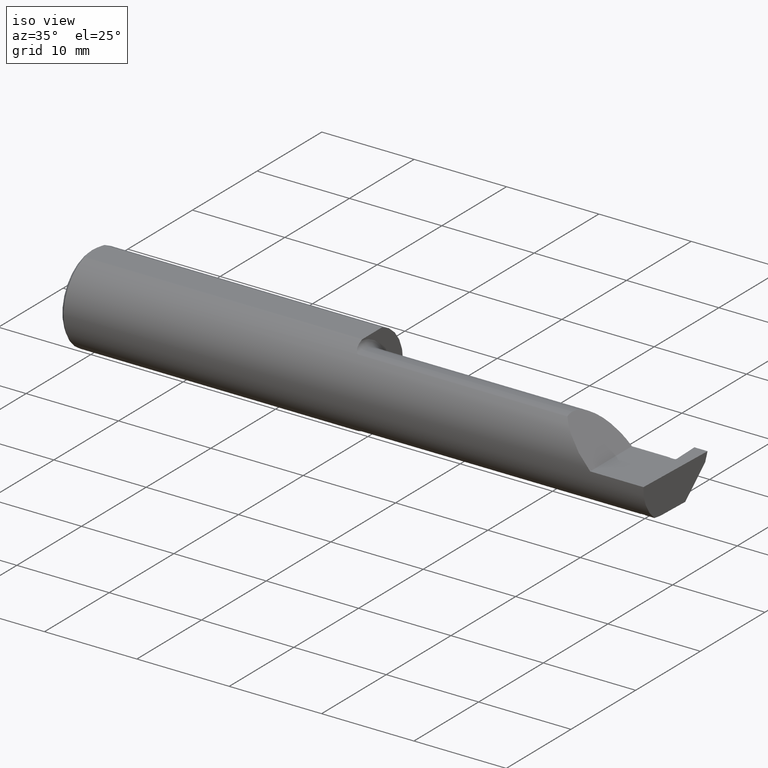
[diagram: clean part render]
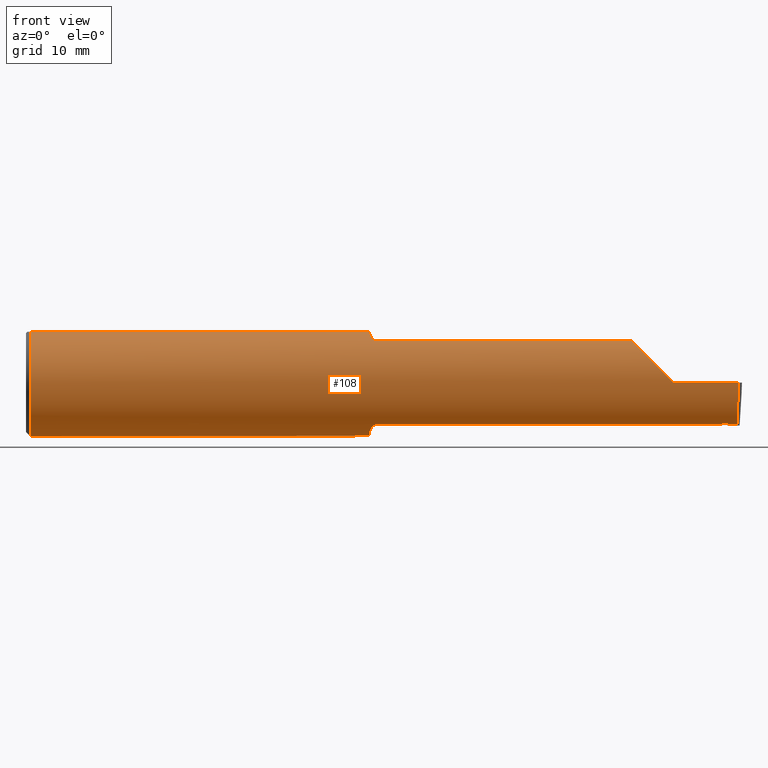
[diagram: tour spotlight — one face highlighted and labeled with its STEP entity id]
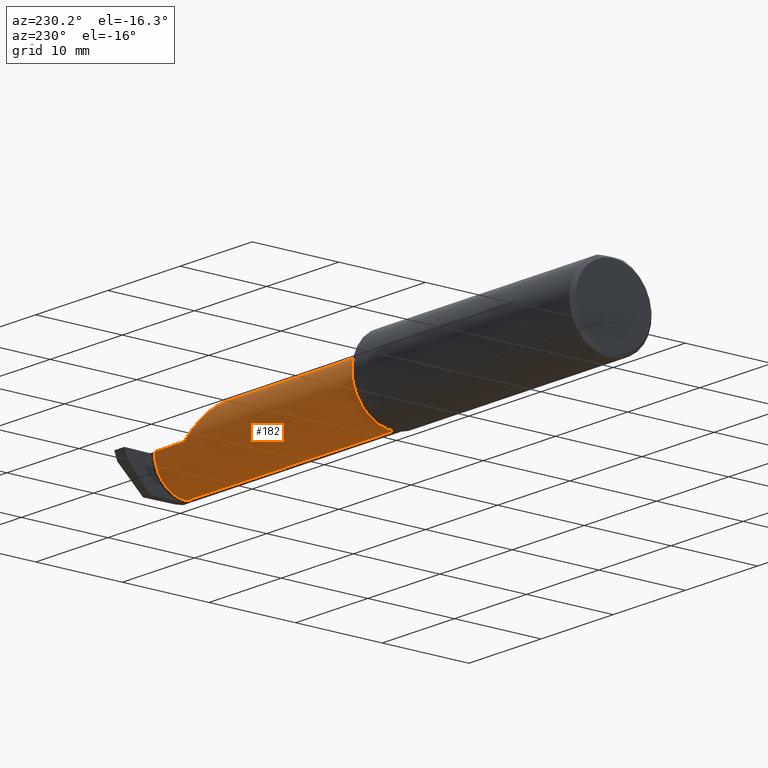
[diagram: tour spotlight — one face highlighted and labeled with its STEP entity id]
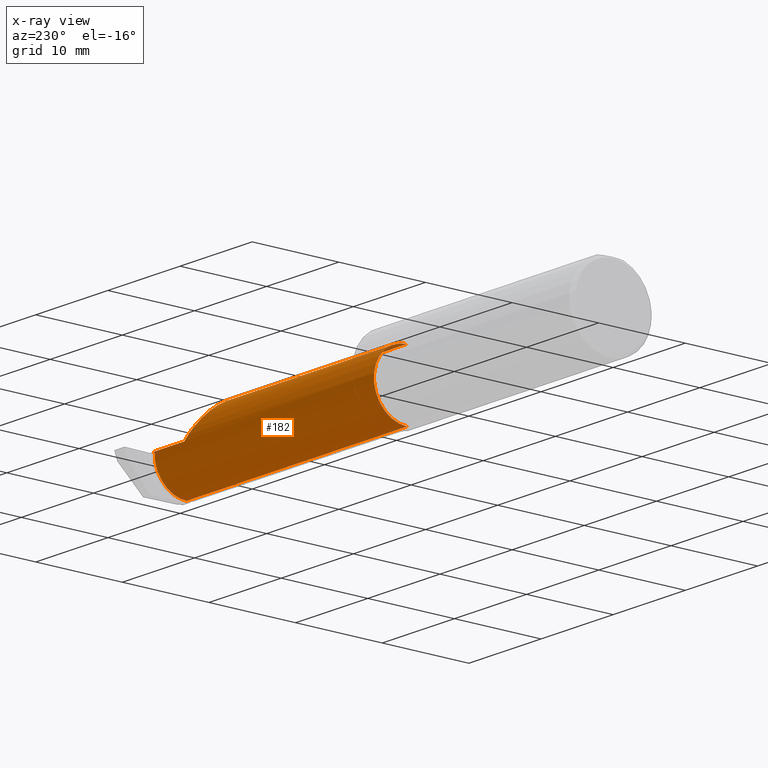
[diagram: x-ray of the same camera — body ghosted, this tour face saturated]
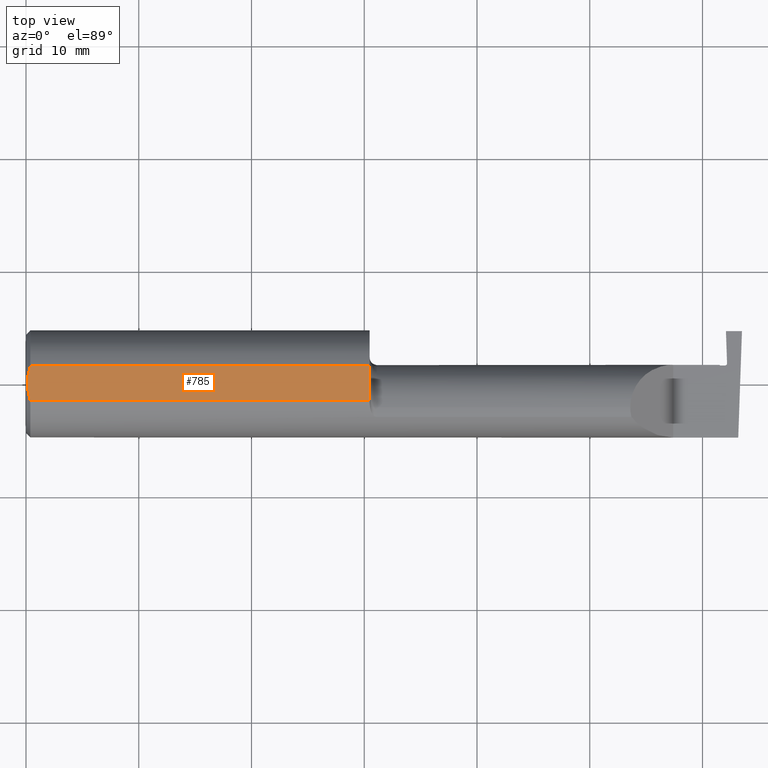
[diagram: tour spotlight — one face highlighted and labeled with its STEP entity id]
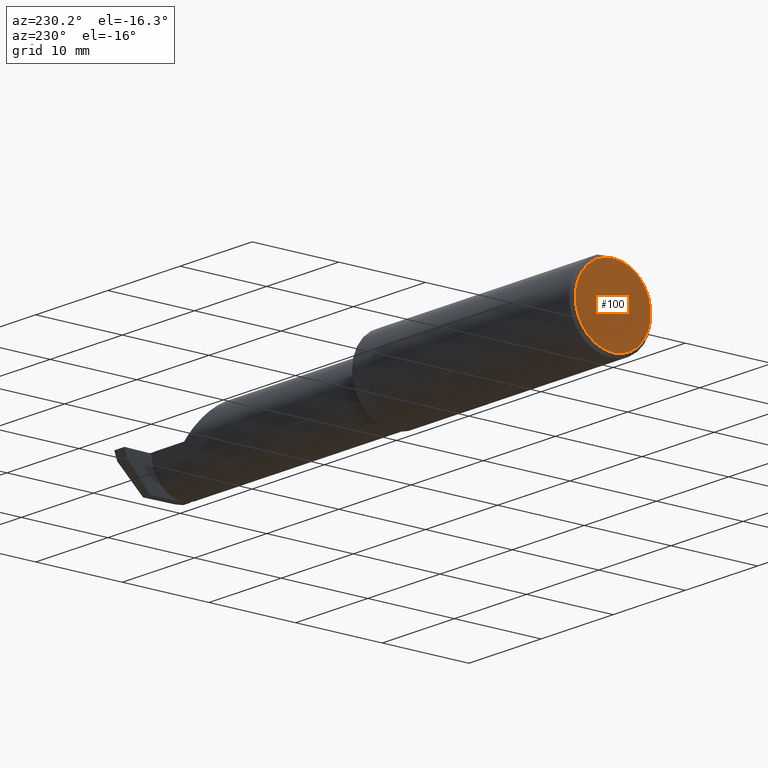
[diagram: tour spotlight — one face highlighted and labeled with its STEP entity id]
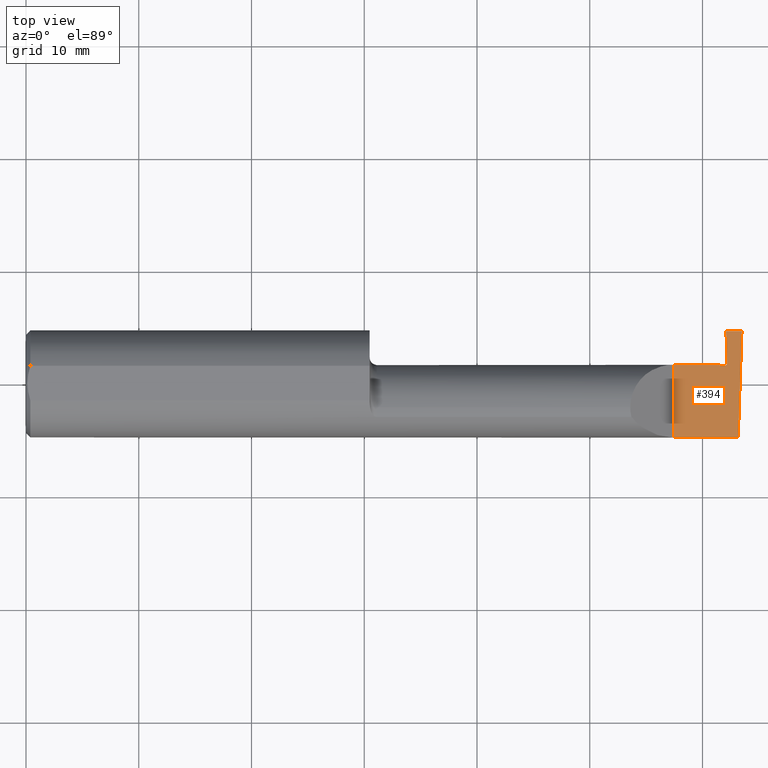
[diagram: tour spotlight — one face highlighted and labeled with its STEP entity id]
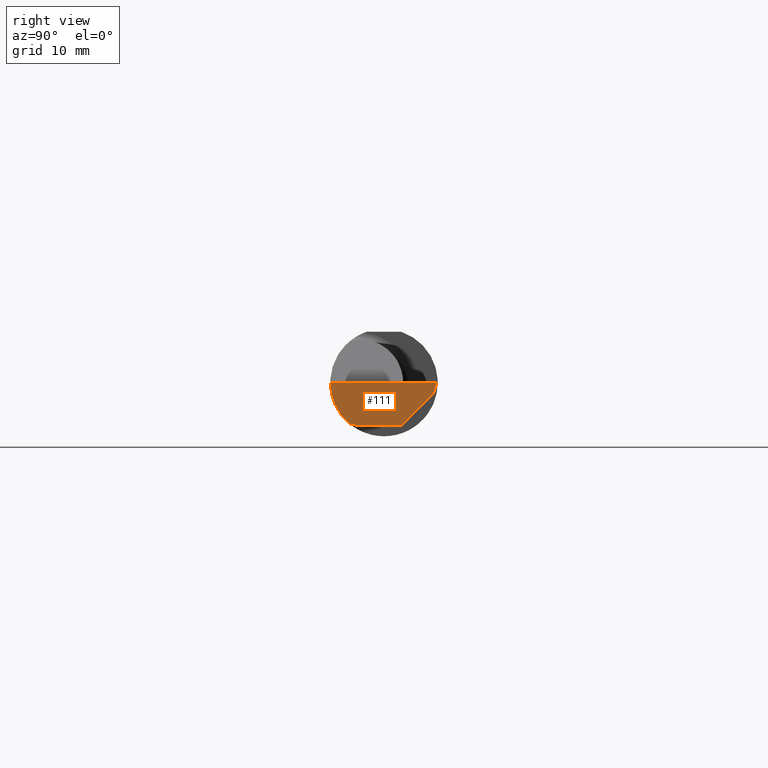
[diagram: tour spotlight — one face highlighted and labeled with its STEP entity id]
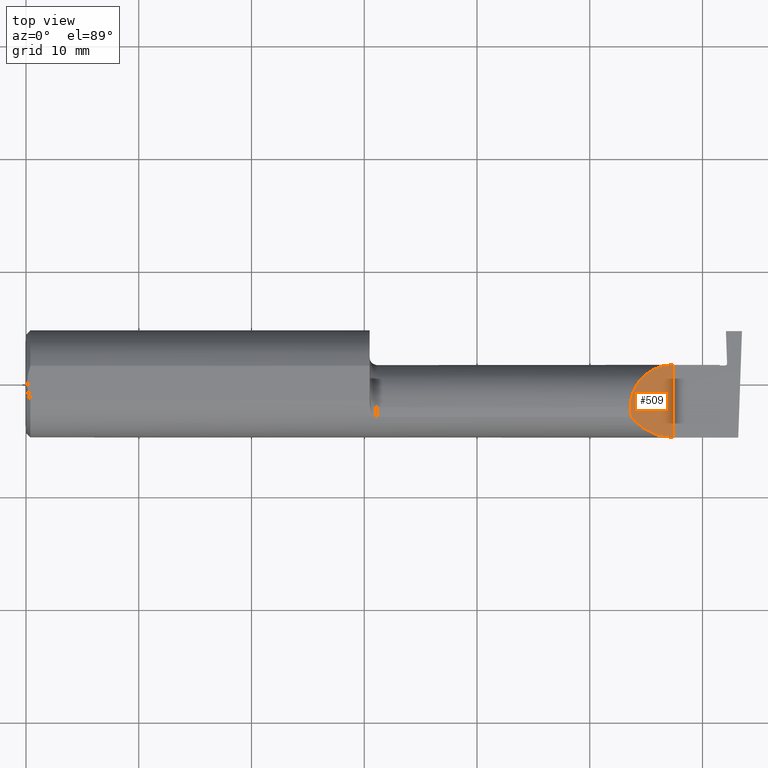
[diagram: tour spotlight — one face highlighted and labeled with its STEP entity id]
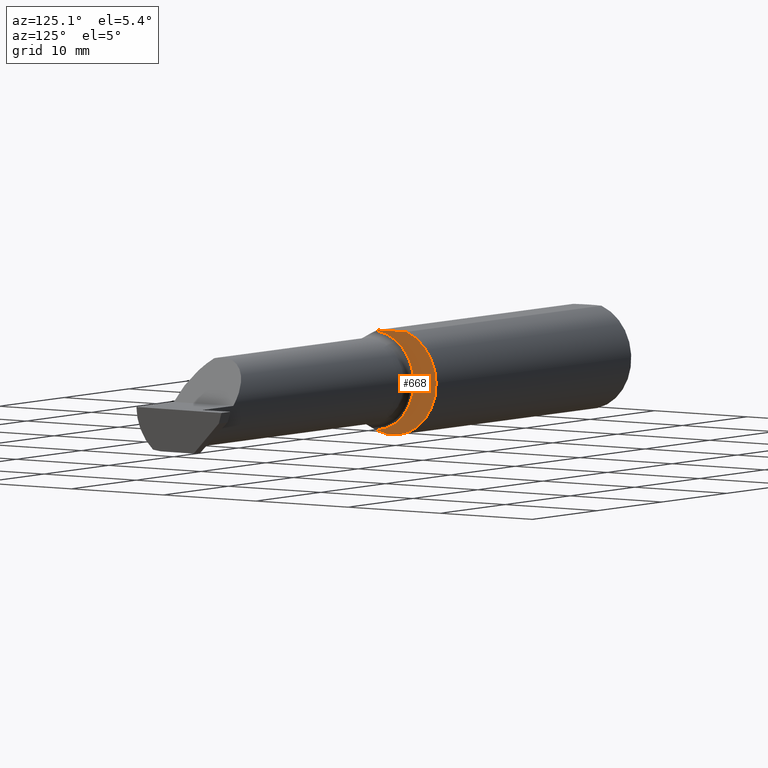
[diagram: tour spotlight — one face highlighted and labeled with its STEP entity id]
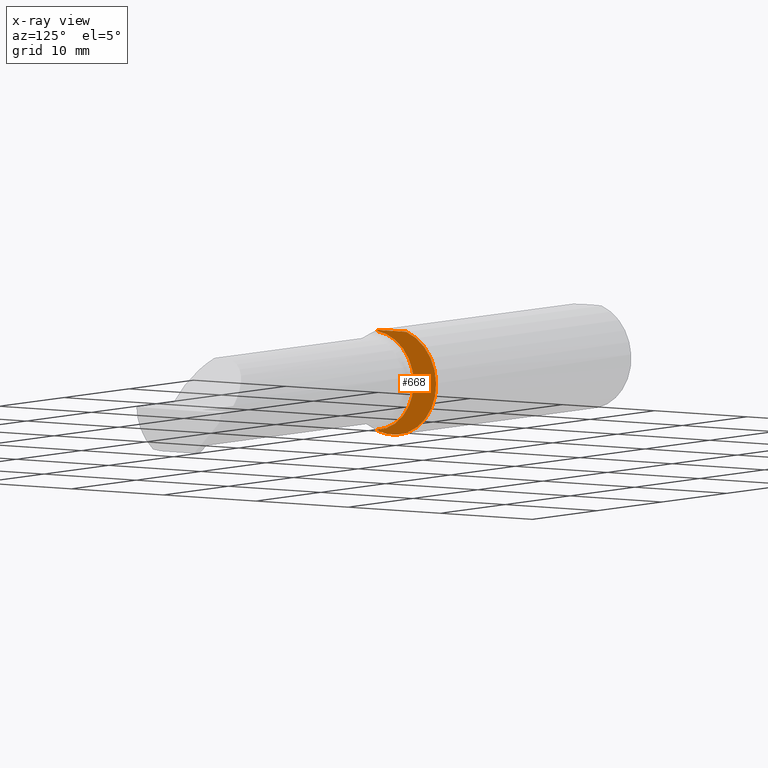
[diagram: x-ray of the same camera — body ghosted, this tour face saturated]
A machine part: a face-by-face anatomy tour. The part has 23 B-rep faces; the first image is the clean iso view, then the 8 largest visible faces are spotlighted one at a time (largest first), each with its STEP entity span.

Face 1 — front view, entity #108. In plain terms, the highlighted cylindrical surface (partial cylindrical patch) has radius 4.7587 mm, axis along (-1, -0, -0).
Definition (entity closure, byte-faithful):
#17 = CARTESIAN_POINT ( 'NONE',  ( 1.225000000000000089, -0.1172600179964007477, 0.1461167706989302817 ) ) ;
#19 = AXIS2_PLACEMENT_3D ( 'NONE', #269, #747, #589 ) ;
#33 = EDGE_CURVE ( 'NONE', #578, #119, #468, .T. ) ;
#34 = CARTESIAN_POINT ( 'NONE',  ( 2.450688798581047045, -0.1181608706206838805, -0.1453938283944277432 ) ) ;
#40 = CARTESIAN_POINT ( 'NONE',  ( 1.199999999999999956, 0.000000000000000000, 0.000000000000000000 ) ) ;
#54 = CIRCLE ( 'NONE', #639, 0.1873499999999999888 ) ;
#61 = CARTESIAN_POINT ( 'NONE',  ( 2.437481533252324972, -0.1204618404460300329, -0.1434886584041366320 ) ) ;
#65 = CARTESIAN_POINT ( 'NONE',  ( 1.209228130464466977, -0.1072797540790369208, -0.1536407449207394804 ) ) ;
#68 = VERTEX_POINT ( 'NONE', #185 ) ;
#69 = CARTESIAN_POINT ( 'NONE',  ( 2.485628535317038867, -0.1172600179964007061, -0.1461167706989303094 ) ) ;
#77 = CARTESIAN_POINT ( 'NONE',  ( 2.441709548055428503, -0.1207156342425953904, -0.1432751135033851486 ) ) ;
#97 = AXIS2_PLACEMENT_3D ( 'NONE', #838, #357, #749 ) ;
#98 = ORIENTED_EDGE ( 'NONE', *, *, #579, .F. ) ;
#103 = CARTESIAN_POINT ( 'NONE',  ( 0.01499999999999999944, -0.06039039658753697637, 0.1773499999999999799 ) ) ;
#105 = EDGE_CURVE ( 'NONE', #113, #927, #911, .T. ) ;
#108 = ADVANCED_FACE ( 'NONE', ( #577 ), #659, .T. ) ;
#109 = CARTESIAN_POINT ( 'NONE',  ( 1.199999999999999956, -0.07359296612170562746, -0.1723769398647691520 ) ) ;
#113 = VERTEX_POINT ( 'NONE', #17 ) ;
#119 = VERTEX_POINT ( 'NONE', #980 ) ;
#122 = CARTESIAN_POINT ( 'NONE',  ( 2.451191799768040802, -0.1172600179964005812, -0.1461167706989303372 ) ) ;
#129 = ORIENTED_EDGE ( 'NONE', *, *, #595, .F. ) ;
#131 = DIRECTION ( 'NONE',  ( -1.000000000000000000, -0.000000000000000000, -0.000000000000000000 ) ) ;
#133 = CARTESIAN_POINT ( 'NONE',  ( 2.445937596161623873, -0.1209687695218929354, -0.1430614528807782615 ) ) ;
#134 = CARTESIAN_POINT ( 'NONE',  ( 1.216924463282974767, -0.1152182125075830038, 0.1477647100440764305 ) ) ;
#143 = CARTESIAN_POINT ( 'NONE',  ( 1.222868998470238333, -0.1172600179964009282, -0.1461167706989301707 ) ) ;
#145 = VERTEX_POINT ( 'NONE', #190 ) ;
#154 = ORIENTED_EDGE ( 'NONE', *, *, #330, .F. ) ;
#169 = ORIENTED_EDGE ( 'NONE', *, *, #214, .F. ) ;
#170 = CARTESIAN_POINT ( 'NONE',  ( 1.225000000000000089, -0.1172600179964006922, -0.1461167706989303094 ) ) ;
#183 = CARTESIAN_POINT ( 'NONE',  ( 1.199999999999999956, -0.06851976604679065053, -0.1743704796142198643 ) ) ;
#185 = CARTESIAN_POINT ( 'NONE',  ( 0.01499999999999756042, 0.06039039658754215278, 0.1773499999999999799 ) ) ;
#190 = CARTESIAN_POINT ( 'NONE',  ( 1.199999999999999956, 0.06039039658754216666, 0.1773499999999999799 ) ) ;
#195 = CARTESIAN_POINT ( 'NONE',  ( 2.427647260851300004, -0.1172600179964005812, -0.1461167706989303372 ) ) ;
#199 = CARTESIAN_POINT ( 'NONE',  ( 2.451191799768040802, -0.1172600179964005812, -0.1461167706989303372 ) ) ;
#214 = EDGE_CURVE ( 'NONE', #661, #230, #651, .T. ) ;
#224 = CARTESIAN_POINT ( 'NONE',  ( 2.433253561410129606, -0.1202072007494162376, -0.1437020493321420622 ) ) ;
#227 = DIRECTION ( 'NONE',  ( 1.000000000000000000, 0.000000000000000000, 0.000000000000000000 ) ) ;
#228 = CARTESIAN_POINT ( 'NONE',  ( 1.202380638915945044, -0.09060738690120608008, -0.1640321561807271122 ) ) ;
#230 = VERTEX_POINT ( 'NONE', #133 ) ;
#231 = B_SPLINE_CURVE_WITH_KNOTS ( 'NONE', 3,
 ( #252, #441, #109, #183 ),
 .UNSPECIFIED., .F., .F.,
 ( 4, 4 ),
 ( 0.001278539404338893291, 0.001694873732696241956 ),
 .UNSPECIFIED. ) ;
#234 = LINE ( 'NONE', #1040, #683 ) ;
#240 = CARTESIAN_POINT ( 'NONE',  ( 1.215551048069661189, -0.1140002044565612965, -0.1486821290834928477 ) ) ;
#242 = VERTEX_POINT ( 'NONE', #526 ) ;
#245 = DIRECTION ( 'NONE',  ( -1.000000000000000000, -0.000000000000000000, -0.000000000000000000 ) ) ;
#252 = CARTESIAN_POINT ( 'NONE',  ( 1.201062863587535334, -0.08334999999999988252, -0.1677879614275112896 ) ) ;
#254 = CARTESIAN_POINT ( 'NONE',  ( 2.113883229301070532, -0.1172600179964006784, 0.1461167706989303650 ) ) ;
#257 = VERTEX_POINT ( 'NONE', #774 ) ;
#269 = CARTESIAN_POINT ( 'NONE',  ( 0.000000000000000000, 0.000000000000000000, 0.000000000000000000 ) ) ;
#276 = LINE ( 'NONE', #1017, #318 ) ;
#278 = CARTESIAN_POINT ( 'NONE',  ( 2.428567406358980829, -0.1190609576996921742, -0.1446577184724211484 ) ) ;
#280 = B_SPLINE_CURVE_WITH_KNOTS ( 'NONE', 3,
 ( #995, #278, #435, #729 ),
 .UNSPECIFIED., .F., .F.,
 ( 4, 4 ),
 ( 0.000000000000000000, 9.500698411833482918E-05 ),
 .UNSPECIFIED. ) ;
#290 = CARTESIAN_POINT ( 'NONE',  ( 1.209249444250374506, -0.1073163636891286687, 0.1536158790136664953 ) ) ;
#293 = CARTESIAN_POINT ( 'NONE',  ( 1.199999999999999956, 0.000000000000000000, 0.000000000000000000 ) ) ;
#298 = CARTESIAN_POINT ( 'NONE',  ( 1.200344683557281300, -0.07855153123406184712, 0.1701716388274757685 ) ) ;
#305 = CARTESIAN_POINT ( 'NONE',  ( 1.199999999999999956, -0.06851976604679065053, -0.1743704796142198643 ) ) ;
#308 = VERTEX_POINT ( 'NONE', #305 ) ;
#310 = CARTESIAN_POINT ( 'NONE',  ( 1.220804171164107110, -0.1167508198888951854, -0.1465276362740036142 ) ) ;
#312 = ORIENTED_EDGE ( 'NONE', *, *, #33, .F. ) ;
#314 = CARTESIAN_POINT ( 'NONE',  ( 2.431139589740714424, -0.1200795990372915262, -0.1438086927498431200 ) ) ;
#318 = VECTOR ( 'NONE', #863, 39.37007874015748143 ) ;
#323 = EDGE_CURVE ( 'NONE', #230, #970, #604, .T. ) ;
#325 = AXIS2_PLACEMENT_3D ( 'NONE', #504, #834, #918 ) ;
#330 = EDGE_CURVE ( 'NONE', #717, #661, #234, .T. ) ;
#342 = VECTOR ( 'NONE', #570, 39.37007874015748143 ) ;
#354 = VECTOR ( 'NONE', #709, 39.37007874015748143 ) ;
#356 = ORIENTED_EDGE ( 'NONE', *, *, #363, .F. ) ;
#357 = DIRECTION ( 'NONE',  ( -1.000000000000000000, -0.000000000000000000, -0.000000000000000000 ) ) ;
#359 = CARTESIAN_POINT ( 'NONE',  ( 2.260000000000000231, -0.1873499999999999888, 2.939152317953647352E-17 ) ) ;
#363 = EDGE_CURVE ( 'NONE', #917, #906, #815, .T. ) ;
#370 = CARTESIAN_POINT ( 'NONE',  ( 2.447211118897188786, -0.1210449020109340551, -0.1429970773740676104 ) ) ;
#373 = ORIENTED_EDGE ( 'NONE', *, *, #854, .T. ) ;
#382 = VERTEX_POINT ( 'NONE', #699 ) ;
#389 = CARTESIAN_POINT ( 'NONE',  ( 2.439595533463821742, -0.1205888784328996016, -0.1433819108919001939 ) ) ;
#398 = CARTESIAN_POINT ( 'NONE',  ( 1.217163414264744059, -0.1151183835841408237, -0.1478135984872519793 ) ) ;
#404 = CARTESIAN_POINT ( 'NONE',  ( 2.429025632386769828, -0.1199517158066736172, -0.1439152819371001535 ) ) ;
#407 = EDGE_CURVE ( 'NONE', #551, #927, #802, .T. ) ;
#428 = ORIENTED_EDGE ( 'NONE', *, *, #474, .F. ) ;
#435 = CARTESIAN_POINT ( 'NONE',  ( 2.428107891671610563, -0.1181636587484605622, -0.1453915908968996529 ) ) ;
#441 = CARTESIAN_POINT ( 'NONE',  ( 1.200346246588684940, -0.07856197451716394331, -0.1701664510438046507 ) ) ;
#443 = CARTESIAN_POINT ( 'NONE',  ( 1.225000000000000089, -0.1172600179964007477, 0.1461167706989302817 ) ) ;
#450 = CIRCLE ( 'NONE', #97, 0.1873499999999999888 ) ;
#451 = CARTESIAN_POINT ( 'NONE',  ( 2.485494735025390867, -0.1873500000000000443, -0.05781030015605120170 ) ) ;
#462 = CARTESIAN_POINT ( 'NONE',  ( 2.445937596161623873, -0.1209687695218929354, -0.1430614528807782615 ) ) ;
#468 = LINE ( 'NONE', #485, #839 ) ;
#474 = EDGE_CURVE ( 'NONE', #487, #917, #276, .T. ) ;
#485 = CARTESIAN_POINT ( 'NONE',  ( 0.000000000000000000, -0.06039039658753697637, 0.1773499999999999799 ) ) ;
#487 = VERTEX_POINT ( 'NONE', #195 ) ;
#498 = ORIENTED_EDGE ( 'NONE', *, *, #696, .F. ) ;
#501 = EDGE_CURVE ( 'NONE', #242, #113, #901, .T. ) ;
#502 = CARTESIAN_POINT ( 'NONE',  ( 1.832000000000000073, -0.1172600179964007061, 0.1461167706989303094 ) ) ;
#504 = CARTESIAN_POINT ( 'NONE',  ( 0.01499999999999999944, 0.000000000000000000, 0.000000000000000000 ) ) ;
#511 = EDGE_CURVE ( 'NONE', #119, #257, #1007, .T. ) ;
#525 = CARTESIAN_POINT ( 'NONE',  ( 2.485002117657001186, -0.1623470442677541481, -0.1099340280425338545 ) ) ;
#526 = CARTESIAN_POINT ( 'NONE',  ( 1.201062863587533780, -0.08334999999998814191, 0.1677879614275171460 ) ) ;
#527 = CARTESIAN_POINT ( 'NONE',  ( 1.211319809340845932, -0.1102629523538397882, 0.1514982751257168414 ) ) ;
#534 = ORIENTED_EDGE ( 'NONE', *, *, #691, .F. ) ;
#535 = CIRCLE ( 'NONE', #325, 0.1873499999999999888 ) ;
#537 = CARTESIAN_POINT ( 'NONE',  ( 1.201612951569643872, -0.08702537370779853121, -0.1659621904011592264 ) ) ;
#541 = CARTESIAN_POINT ( 'NONE',  ( 3.749399456654646757E-32, -0.1873499999999999888, 3.061616997868384127E-16 ) ) ;
#549 = CARTESIAN_POINT ( 'NONE',  ( 1.204475235432781455, -0.09757364237049412359, -0.1599863467203317957 ) ) ;
#551 = VERTEX_POINT ( 'NONE', #563 ) ;
#560 = CARTESIAN_POINT ( 'NONE',  ( 1.211340974786206948, -0.1102890168945988708, -0.1514792188789463312 ) ) ;
#563 = CARTESIAN_POINT ( 'NONE',  ( 2.260000000000000231, -0.1873499999999999888, 2.939152317953647352E-17 ) ) ;
#564 = ORIENTED_EDGE ( 'NONE', *, *, #769, .F. ) ;
#565 = ORIENTED_EDGE ( 'NONE', *, *, #737, .F. ) ;
#570 = DIRECTION ( 'NONE',  ( 1.000000000000000000, 0.000000000000000000, 0.000000000000000000 ) ) ;
#577 = FACE_OUTER_BOUND ( 'NONE', #657, .T. ) ;
#578 = VERTEX_POINT ( 'NONE', #103 ) ;
#579 = EDGE_CURVE ( 'NONE', #970, #487, #280, .T. ) ;
#584 = ORIENTED_EDGE ( 'NONE', *, *, #105, .F. ) ;
#589 = DIRECTION ( 'NONE',  ( 0.000000000000000000, 0.000000000000000000, 1.000000000000000000 ) ) ;
#591 = EDGE_CURVE ( 'NONE', #382, #578, #450, .T. ) ;
#595 = EDGE_CURVE ( 'NONE', #906, #308, #231, .T. ) ;
#600 = B_SPLINE_CURVE_WITH_KNOTS ( 'NONE', 3,
 ( #1030, #779, #298, #871 ),
 .UNSPECIFIED., .F., .F.,
 ( 4, 4 ),
 ( 4.423516731080792778E-05, 0.0004561457252213473078 ),
 .UNSPECIFIED. ) ;
#604 = B_SPLINE_CURVE_WITH_KNOTS ( 'NONE', 3,
 ( #462, #1031, #960, #77, #389, #61, #720, #224, #314, #715 ),
 .UNSPECIFIED., .F., .F.,
 ( 4, 3, 3, 4 ),
 ( 0.000000000000000000, 0.0001077215141519473839, 0.0002693037975414027448, 0.0004308860927682803157 ),
 .UNSPECIFIED. ) ;
#605 = ORIENTED_EDGE ( 'NONE', *, *, #511, .F. ) ;
#610 = ORIENTED_EDGE ( 'NONE', *, *, #704, .T. ) ;
#612 = CARTESIAN_POINT ( 'NONE',  ( 2.150065971957467070, -0.1623470442677541759, 0.1099340280425336880 ) ) ;
#617 = CARTESIAN_POINT ( 'NONE',  ( 2.113883229301070532, -0.1172600179964006784, 0.1461167706989303650 ) ) ;
#639 = AXIS2_PLACEMENT_3D ( 'NONE', #293, #227, #766 ) ;
#651 = B_SPLINE_CURVE_WITH_KNOTS ( 'NONE', 3,
 ( #122, #34, #857, #763, #370, #672 ),
 .UNSPECIFIED., .F., .F.,
 ( 4, 2, 4 ),
 ( 0.0002908273715189344986, 0.0003847775289443997743, 0.0004787276863698649958 ),
 .UNSPECIFIED. ) ;
#657 = EDGE_LOOP ( 'NONE', ( #154, #373, #610, #695, #584, #804, #564, #605, #312, #798, #534, #498, #565, #129, #356, #428, #98, #933, #169 ) ) ;
#659 = CYLINDRICAL_SURFACE ( 'NONE', #19, 0.1873499999999999888 ) ;
#661 = VERTEX_POINT ( 'NONE', #199 ) ;
#672 = CARTESIAN_POINT ( 'NONE',  ( 2.445937596161623873, -0.1209687695218929354, -0.1430614528807782615 ) ) ;
#678 = CARTESIAN_POINT ( 'NONE',  ( 1.204075010165368775, -0.09778159395695873446, 0.1599914159748310472 ) ) ;
#683 = VECTOR ( 'NONE', #245, 39.37007874015748143 ) ;
#686 = CARTESIAN_POINT ( 'NONE',  ( 2.485628535317038867, -0.1172600179964007061, -0.1461167706989303094 ) ) ;
#691 = EDGE_CURVE ( 'NONE', #68, #382, #535, .T. ) ;
#695 = ORIENTED_EDGE ( 'NONE', *, *, #407, .T. ) ;
#696 = EDGE_CURVE ( 'NONE', #145, #68, #843, .T. ) ;
#698 =( BOUNDED_CURVE ( )  B_SPLINE_CURVE ( 3, ( #686, #525, #451, #786 ),
 .UNSPECIFIED., .F., .T. ) 
 B_SPLINE_CURVE_WITH_KNOTS ( ( 4, 4 ),
 ( 6.032366188922103412, 6.926893589830550368 ),
 .UNSPECIFIED. ) 
 CURVE ( )  GEOMETRIC_REPRESENTATION_ITEM ( )  RATIONAL_B_SPLINE_CURVE ( ( 1.000000000000000000, 0.9344226172588803170, 0.9344226172588803170, 1.000000000000000000 ) ) 
 REPRESENTATION_ITEM ( '' )  );
#699 = CARTESIAN_POINT ( 'NONE',  ( 0.01499999999999999944, 0.000000000000000000, -0.1873499999999999888 ) ) ;
#704 = EDGE_CURVE ( 'NONE', #772, #551, #861, .T. ) ;
#709 = DIRECTION ( 'NONE',  ( -1.000000000000000000, -0.000000000000000000, -0.000000000000000000 ) ) ;
#710 = CARTESIAN_POINT ( 'NONE',  ( 1.201062863587535334, -0.08334999999999988252, -0.1677879614275112896 ) ) ;
#712 = DIRECTION ( 'NONE',  ( 1.000000000000000000, 0.000000000000000000, 0.000000000000000000 ) ) ;
#715 = CARTESIAN_POINT ( 'NONE',  ( 2.429025632386769828, -0.1199517158066736172, -0.1439152819371001535 ) ) ;
#717 = VERTEX_POINT ( 'NONE', #69 ) ;
#718 = AXIS2_PLACEMENT_3D ( 'NONE', #40, #846, #1021 ) ;
#720 = CARTESIAN_POINT ( 'NONE',  ( 2.435367547408658684, -0.1203345206023866409, -0.1435953538642312788 ) ) ;
#729 = CARTESIAN_POINT ( 'NONE',  ( 2.427647260851300004, -0.1172600179964005812, -0.1461167706989303372 ) ) ;
#737 = EDGE_CURVE ( 'NONE', #308, #145, #54, .T. ) ;
#747 = DIRECTION ( 'NONE',  ( -1.000000000000000000, -0.000000000000000000, -0.000000000000000000 ) ) ;
#749 = DIRECTION ( 'NONE',  ( 0.000000000000000000, 0.000000000000000000, 1.000000000000000000 ) ) ;
#761 = CARTESIAN_POINT ( 'NONE',  ( 0.000000000000000000, 0.06039039658753697637, 0.1773499999999999799 ) ) ;
#763 = CARTESIAN_POINT ( 'NONE',  ( 2.448382007790452342, -0.1204607716139935725, -0.1434925048654339952 ) ) ;
#764 = CARTESIAN_POINT ( 'NONE',  ( 1.202158970028689655, -0.09067355718685707333, 0.1641499263364886163 ) ) ;
#766 = DIRECTION ( 'NONE',  ( 0.000000000000000000, 0.000000000000000000, -1.000000000000000000 ) ) ;
#769 = EDGE_CURVE ( 'NONE', #257, #242, #600, .T. ) ;
#771 = CARTESIAN_POINT ( 'NONE',  ( 1.201062863587533780, -0.08334999999998814191, 0.1677879614275171460 ) ) ;
#772 = VERTEX_POINT ( 'NONE', #943 ) ;
#774 = CARTESIAN_POINT ( 'NONE',  ( 1.199999999999999956, -0.06851976604679065053, 0.1743704796142198643 ) ) ;
#776 = CARTESIAN_POINT ( 'NONE',  ( 2.202189699843949633, -0.1873500000000000998, 0.05781030015605104211 ) ) ;
#779 = CARTESIAN_POINT ( 'NONE',  ( 1.199999999999999734, -0.07360907839729496915, 0.1723706084642000480 ) ) ;
#786 = CARTESIAN_POINT ( 'NONE',  ( 2.487009473749072441, -0.1873499999999999055, 0.000000000000000000 ) ) ;
#798 = ORIENTED_EDGE ( 'NONE', *, *, #591, .F. ) ;
#800 = CARTESIAN_POINT ( 'NONE',  ( 1.225000000000000089, -0.1172600179964006922, -0.1461167706989303094 ) ) ;
#802 =( BOUNDED_CURVE ( )  B_SPLINE_CURVE ( 3, ( #359, #776, #612, #617 ),
 .UNSPECIFIED., .F., .F. ) 
 B_SPLINE_CURVE_WITH_KNOTS ( ( 4, 4 ),
 ( 4.712388980384688786, 5.606916381293136631 ),
 .UNSPECIFIED. ) 
 CURVE ( )  GEOMETRIC_REPRESENTATION_ITEM ( )  RATIONAL_B_SPLINE_CURVE ( ( 1.000000000000000000, 0.9344226172588802060, 0.9344226172588802060, 1.000000000000000000 ) ) 
 REPRESENTATION_ITEM ( '' )  );
#804 = ORIENTED_EDGE ( 'NONE', *, *, #501, .F. ) ;
#812 = VECTOR ( 'NONE', #131, 39.37007874015748143 ) ;
#815 = B_SPLINE_CURVE_WITH_KNOTS ( 'NONE', 3,
 ( #800, #143, #310, #398, #240, #560, #65, #889, #549, #228, #537, #710 ),
 .UNSPECIFIED., .F., .F.,
 ( 4, 2, 2, 2, 2, 4 ),
 ( 1.967976973692733563E-07, 0.0001599896235275599090, 0.0003197824493577505083, 0.0006393681010181317612, 0.0009589537526785125261, 0.001278539404338893291 ),
 .UNSPECIFIED. ) ;
#819 = CARTESIAN_POINT ( 'NONE',  ( 1.201062863587535334, -0.08334999999999988252, -0.1677879614275112896 ) ) ;
#834 = DIRECTION ( 'NONE',  ( -1.000000000000000000, -0.000000000000000000, -0.000000000000000000 ) ) ;
#838 = CARTESIAN_POINT ( 'NONE',  ( 0.01499999999999999944, 0.000000000000000000, 0.000000000000000000 ) ) ;
#839 = VECTOR ( 'NONE', #712, 39.37007874015748143 ) ;
#843 = LINE ( 'NONE', #761, #812 ) ;
#846 = DIRECTION ( 'NONE',  ( 1.000000000000000000, 0.000000000000000000, 0.000000000000000000 ) ) ;
#852 = CARTESIAN_POINT ( 'NONE',  ( 1.220724556588812515, -0.1172600179964063682, 0.1461167706989258130 ) ) ;
#854 = EDGE_CURVE ( 'NONE', #717, #772, #698, .T. ) ;
#857 = CARTESIAN_POINT ( 'NONE',  ( 2.450071708900427137, -0.1190227893687502148, -0.1446874979439393971 ) ) ;
#861 = LINE ( 'NONE', #541, #354 ) ;
#863 = DIRECTION ( 'NONE',  ( -1.000000000000000000, -0.000000000000000000, -0.000000000000000000 ) ) ;
#871 = CARTESIAN_POINT ( 'NONE',  ( 1.201062863587533780, -0.08334999999998814191, 0.1677879614275171460 ) ) ;
#889 = CARTESIAN_POINT ( 'NONE',  ( 1.205806801261507522, -0.1009700360460132618, -0.1578590382459146291 ) ) ;
#901 = B_SPLINE_CURVE_WITH_KNOTS ( 'NONE', 3,
 ( #771, #764, #678, #290, #527, #134, #852, #443 ),
 .UNSPECIFIED., .F., .F.,
 ( 4, 2, 2, 4 ),
 ( 0.0004561457252213473078, 0.001084815134961809131, 0.001399149839832038470, 0.001713484544702267593 ),
 .UNSPECIFIED. ) ;
#906 = VERTEX_POINT ( 'NONE', #819 ) ;
#911 = LINE ( 'NONE', #502, #342 ) ;
#917 = VERTEX_POINT ( 'NONE', #170 ) ;
#918 = DIRECTION ( 'NONE',  ( 0.000000000000000000, 0.000000000000000000, 1.000000000000000000 ) ) ;
#927 = VERTEX_POINT ( 'NONE', #254 ) ;
#933 = ORIENTED_EDGE ( 'NONE', *, *, #323, .F. ) ;
#943 = CARTESIAN_POINT ( 'NONE',  ( 2.487009473749072441, -0.1873499999999999055, 0.000000000000000000 ) ) ;
#960 = CARTESIAN_POINT ( 'NONE',  ( 2.443118891017594496, -0.1208001381097956045, -0.1432039152493716494 ) ) ;
#970 = VERTEX_POINT ( 'NONE', #404 ) ;
#980 = CARTESIAN_POINT ( 'NONE',  ( 1.199999999999999956, -0.06039039658753699025, 0.1773499999999999799 ) ) ;
#995 = CARTESIAN_POINT ( 'NONE',  ( 2.429025632386769828, -0.1199517158066736172, -0.1439152819371001535 ) ) ;
#1007 = CIRCLE ( 'NONE', #718, 0.1873499999999999888 ) ;
#1017 = CARTESIAN_POINT ( 'NONE',  ( 1.832000000000000073, -0.1172600179964007061, -0.1461167706989303094 ) ) ;
#1021 = DIRECTION ( 'NONE',  ( 0.000000000000000000, 0.000000000000000000, -1.000000000000000000 ) ) ;
#1030 = CARTESIAN_POINT ( 'NONE',  ( 1.199999999999999956, -0.06851976604679065053, 0.1743704796142198643 ) ) ;
#1031 = CARTESIAN_POINT ( 'NONE',  ( 2.444528240385225537, -0.1208845165662131016, -0.1431326948273120014 ) ) ;
#1040 = CARTESIAN_POINT ( 'NONE',  ( 1.832000000000000073, -0.1172600179964007061, -0.1461167706989303094 ) ) ;

Face 2 — auxiliary view, entity #182. An x-ray twin of the same camera follows (body ghosted, this face saturated) — the face is partly hidden behind the body. In plain terms, the highlighted cylindrical surface (partial cylindrical patch) has radius 3.81 mm, axis along (-1, -0, -0).
Definition (entity closure, byte-faithful):
#7 = ORIENTED_EDGE ( 'NONE', *, *, #775, .T. ) ;
#14 = VERTEX_POINT ( 'NONE', #730 ) ;
#21 = CARTESIAN_POINT ( 'NONE',  ( 1.225000000000000089, -0.08334999999999996578, 0.1499999999999999944 ) ) ;
#22 = ORIENTED_EDGE ( 'NONE', *, *, #506, .T. ) ;
#24 = CYLINDRICAL_SURFACE ( 'NONE', #81, 0.1499999999999999944 ) ;
#52 = CARTESIAN_POINT ( 'NONE',  ( 2.110000000000000764, 0.004517965644035819121, 0.1500000000000000222 ) ) ;
#64 = CARTESIAN_POINT ( 'NONE',  ( 2.260000000000000231, 0.06665000000000002867, 2.939152317953647352E-17 ) ) ;
#76 = VERTEX_POINT ( 'NONE', #489 ) ;
#81 = AXIS2_PLACEMENT_3D ( 'NONE', #902, #821, #831 ) ;
#90 = CARTESIAN_POINT ( 'NONE',  ( 2.425501685803130858, 0.03584079102245335546, -0.09159665206315999175 ) ) ;
#94 = CARTESIAN_POINT ( 'NONE',  ( 2.425778718048098082, 0.02964324835634767757, -0.09913906151157172997 ) ) ;
#106 = FACE_OUTER_BOUND ( 'NONE', #723, .T. ) ;
#115 = CARTESIAN_POINT ( 'NONE',  ( 1.199999999999999956, -0.08334999999999996578, 0.1499999999999999944 ) ) ;
#128 = CARTESIAN_POINT ( 'NONE',  ( 2.110000000000000764, -0.08334999999999996578, 0.1499999999999999944 ) ) ;
#182 = ADVANCED_FACE ( 'NONE', ( #106 ), #24, .T. ) ;
#186 = VERTEX_POINT ( 'NONE', #21 ) ;
#192 = ORIENTED_EDGE ( 'NONE', *, *, #545, .F. ) ;
#204 = DIRECTION ( 'NONE',  ( 1.000000000000000000, 0.000000000000000000, 0.000000000000000000 ) ) ;
#208 = ORIENTED_EDGE ( 'NONE', *, *, #963, .T. ) ;
#215 = CARTESIAN_POINT ( 'NONE',  ( 1.199999999999999956, 0.06665000000000002867, 1.592040838891560081E-16 ) ) ;
#301 = CARTESIAN_POINT ( 'NONE',  ( 2.422000000000233300, 0.06664999999976690959, 9.382037755870038314E-18 ) ) ;
#304 = EDGE_CURVE ( 'NONE', #14, #76, #706, .T. ) ;
#313 = CARTESIAN_POINT ( 'NONE',  ( 2.427195285510769462, -0.01680787243324774471, -0.1347941465764687097 ) ) ;
#331 = CARTESIAN_POINT ( 'NONE',  ( 2.424584092740869057, 0.05145648344472088936, -0.06650224096142998143 ) ) ;
#361 = LINE ( 'NONE', #115, #632 ) ;
#367 = CIRCLE ( 'NONE', #907, 0.1499999999999999944 ) ;
#392 = CARTESIAN_POINT ( 'NONE',  ( 2.427802735541638501, -0.08335000000000183928, -0.1499999999999999944 ) ) ;
#416 = CARTESIAN_POINT ( 'NONE',  ( 2.426340558372577672, 0.01578456802582628785, -0.1129971907343155363 ) ) ;
#433 = CARTESIAN_POINT ( 'NONE',  ( 1.225000000000000089, -0.08334999999999996578, 0.000000000000000000 ) ) ;
#455 = VECTOR ( 'NONE', #204, 39.37007874015748143 ) ;
#481 = CARTESIAN_POINT ( 'NONE',  ( 2.424917640982222622, 0.04676325874620299028, -0.07527902252408288919 ) ) ;
#482 =( BOUNDED_CURVE ( )  B_SPLINE_CURVE ( 3, ( #128, #52, #1005, #759 ),
 .UNSPECIFIED., .F., .T. ) 
 B_SPLINE_CURVE_WITH_KNOTS ( ( 4, 4 ),
 ( 0.000000000000000000, 1.570796326794897446 ),
 .UNSPECIFIED. ) 
 CURVE ( )  GEOMETRIC_REPRESENTATION_ITEM ( )  RATIONAL_B_SPLINE_CURVE ( ( 1.000000000000000000, 0.8047378541243648264, 0.8047378541243648264, 1.000000000000000000 ) ) 
 REPRESENTATION_ITEM ( '' )  );
#489 = CARTESIAN_POINT ( 'NONE',  ( 1.225000000000000089, -0.08334999999999995191, -0.1499999999999999944 ) ) ;
#506 = EDGE_CURVE ( 'NONE', #837, #874, #482, .T. ) ;
#519 = VERTEX_POINT ( 'NONE', #301 ) ;
#531 = CARTESIAN_POINT ( 'NONE',  ( 2.110000000000000764, -0.08334999999999996578, 0.1499999999999999944 ) ) ;
#545 = EDGE_CURVE ( 'NONE', #186, #76, #367, .T. ) ;
#546 = CARTESIAN_POINT ( 'NONE',  ( 2.422759758555640186, 0.06664999999602222447, -0.01979751688742135626 ) ) ;
#547 = VECTOR ( 'NONE', #641, 39.37007874015748143 ) ;
#590 = B_SPLINE_CURVE_WITH_KNOTS ( 'NONE', 3,
 ( #814, #546, #795, #331, #481, #90, #94, #416, #735, #877, #313, #799, #628, #392 ),
 .UNSPECIFIED., .F., .F.,
 ( 4, 2, 2, 2, 2, 2, 4 ),
 ( 0.000000000000000000, 0.001502808940750282804, 0.002254213411125423772, 0.003005617881500564307, 0.003757022351875705709, 0.004508426822250845810, 0.006011235763001126879 ),
 .UNSPECIFIED. ) ;
#611 = LINE ( 'NONE', #215, #455 ) ;
#628 = CARTESIAN_POINT ( 'NONE',  ( 2.427823194575301713, -0.06360486144612774451, -0.1500000000000001610 ) ) ;
#629 = CARTESIAN_POINT ( 'NONE',  ( 1.199999999999999956, -0.08334999999999995191, -0.1499999999999999944 ) ) ;
#632 = VECTOR ( 'NONE', #989, 39.37007874015748143 ) ;
#641 = DIRECTION ( 'NONE',  ( -1.000000000000000000, -0.000000000000000000, -0.000000000000000000 ) ) ;
#664 = EDGE_CURVE ( 'NONE', #837, #186, #361, .T. ) ;
#706 = LINE ( 'NONE', #629, #547 ) ;
#723 = EDGE_LOOP ( 'NONE', ( #208, #987, #192, #880, #22, #7 ) ) ;
#730 = CARTESIAN_POINT ( 'NONE',  ( 2.427802735541638501, -0.08335000000000183928, -0.1499999999999999944 ) ) ;
#735 = CARTESIAN_POINT ( 'NONE',  ( 2.426625743432521354, 0.008070056107604150347, -0.1193229051177442518 ) ) ;
#759 = CARTESIAN_POINT ( 'NONE',  ( 2.260000000000000231, 0.06665000000000002867, 2.939152317953647352E-17 ) ) ;
#775 = EDGE_CURVE ( 'NONE', #874, #519, #611, .T. ) ;
#783 = DIRECTION ( 'NONE',  ( -1.000000000000000000, -0.000000000000000000, -0.000000000000000000 ) ) ;
#795 = CARTESIAN_POINT ( 'NONE',  ( 2.423485480597455499, 0.06268191132978999380, -0.03944648273121285909 ) ) ;
#799 = CARTESIAN_POINT ( 'NONE',  ( 2.427601074765438405, -0.04414771950625965419, -0.1461247685152789189 ) ) ;
#814 = CARTESIAN_POINT ( 'NONE',  ( 2.422000000000233300, 0.06664999999976690959, 9.382037755870038314E-18 ) ) ;
#821 = DIRECTION ( 'NONE',  ( -1.000000000000000000, -0.000000000000000000, -0.000000000000000000 ) ) ;
#831 = DIRECTION ( 'NONE',  ( 0.000000000000000000, 0.000000000000000000, 1.000000000000000000 ) ) ;
#837 = VERTEX_POINT ( 'NONE', #531 ) ;
#869 = DIRECTION ( 'NONE',  ( 0.000000000000000000, 0.000000000000000000, 1.000000000000000000 ) ) ;
#874 = VERTEX_POINT ( 'NONE', #64 ) ;
#877 = CARTESIAN_POINT ( 'NONE',  ( 2.427047496117680669, -0.008191918250015807826, -0.1301800487483331659 ) ) ;
#880 = ORIENTED_EDGE ( 'NONE', *, *, #664, .F. ) ;
#902 = CARTESIAN_POINT ( 'NONE',  ( 1.199999999999999956, -0.08334999999999996578, 0.000000000000000000 ) ) ;
#907 = AXIS2_PLACEMENT_3D ( 'NONE', #433, #783, #869 ) ;
#963 = EDGE_CURVE ( 'NONE', #519, #14, #590, .T. ) ;
#987 = ORIENTED_EDGE ( 'NONE', *, *, #304, .T. ) ;
#989 = DIRECTION ( 'NONE',  ( -1.000000000000000000, -0.000000000000000000, -0.000000000000000000 ) ) ;
#1005 = CARTESIAN_POINT ( 'NONE',  ( 2.172132034355964691, 0.06665000000000009805, 0.08786796564403569210 ) ) ;

Face 3 — top view, entity #785. In plain terms, the highlighted planar face has unit normal (0, -0, 1).
Definition (entity closure, byte-faithful):
#6 = VERTEX_POINT ( 'NONE', #627 ) ;
#10 = EDGE_CURVE ( 'NONE', #119, #145, #544, .T. ) ;
#15 = CARTESIAN_POINT ( 'NONE',  ( 0.01185291896084217714, 0.05062716160312498437, 0.1773499999999999521 ) ) ;
#30 = ORIENTED_EDGE ( 'NONE', *, *, #696, .T. ) ;
#33 = EDGE_CURVE ( 'NONE', #578, #119, #468, .T. ) ;
#60 = DIRECTION ( 'NONE',  ( 0.000000000000000000, -0.000000000000000000, 1.000000000000000000 ) ) ;
#68 = VERTEX_POINT ( 'NONE', #185 ) ;
#73 = B_SPLINE_CURVE_WITH_KNOTS ( 'NONE', 3,
 ( #243, #15, #979, #239, #559, #726 ),
 .UNSPECIFIED., .F., .F.,
 ( 4, 2, 4 ),
 ( 0.004207325536406422359, 0.004979129323161655095, 0.005750933109916887831 ),
 .UNSPECIFIED. ) ;
#82 = CARTESIAN_POINT ( 'NONE',  ( 0.005896899252109314912, -0.02043863390046160924, 0.1773500000000000354 ) ) ;
#103 = CARTESIAN_POINT ( 'NONE',  ( 0.01499999999999999944, -0.06039039658753697637, 0.1773499999999999799 ) ) ;
#119 = VERTEX_POINT ( 'NONE', #980 ) ;
#131 = DIRECTION ( 'NONE',  ( -1.000000000000000000, -0.000000000000000000, -0.000000000000000000 ) ) ;
#145 = VERTEX_POINT ( 'NONE', #190 ) ;
#158 = CARTESIAN_POINT ( 'NONE',  ( 1.199999999999999956, -0.1873500000000000165, 0.1773499999999999799 ) ) ;
#185 = CARTESIAN_POINT ( 'NONE',  ( 0.01499999999999756042, 0.06039039658754215278, 0.1773499999999999799 ) ) ;
#190 = CARTESIAN_POINT ( 'NONE',  ( 1.199999999999999956, 0.06039039658754216666, 0.1773499999999999799 ) ) ;
#210 = FACE_OUTER_BOUND ( 'NONE', #667, .T. ) ;
#239 = CARTESIAN_POINT ( 'NONE',  ( 0.005916828623699125177, 0.02060071390057613763, 0.1773499999999999799 ) ) ;
#243 = CARTESIAN_POINT ( 'NONE',  ( 0.01499999999999756042, 0.06039039658754215278, 0.1773499999999999799 ) ) ;
#309 = CARTESIAN_POINT ( 'NONE',  ( 2.500000000000000000, -0.1873500000000000165, 0.1773499999999999799 ) ) ;
#317 = CARTESIAN_POINT ( 'NONE',  ( 0.01499999999999999944, -0.06039039658753697637, 0.1773499999999999799 ) ) ;
#405 = AXIS2_PLACEMENT_3D ( 'NONE', #309, #60, #614 ) ;
#468 = LINE ( 'NONE', #485, #839 ) ;
#478 = DIRECTION ( 'NONE',  ( -0.000000000000000000, 1.000000000000000000, 0.000000000000000000 ) ) ;
#485 = CARTESIAN_POINT ( 'NONE',  ( 0.000000000000000000, -0.06039039658753697637, 0.1773499999999999799 ) ) ;
#544 = LINE ( 'NONE', #158, #988 ) ;
#559 = CARTESIAN_POINT ( 'NONE',  ( 0.004999999999999839642, 0.01027925662263861305, 0.1773499999999999799 ) ) ;
#578 = VERTEX_POINT ( 'NONE', #103 ) ;
#613 = ORIENTED_EDGE ( 'NONE', *, *, #10, .T. ) ;
#614 = DIRECTION ( 'NONE',  ( 1.000000000000000000, 0.000000000000000000, -0.000000000000000000 ) ) ;
#627 = CARTESIAN_POINT ( 'NONE',  ( 0.004999999999999835305, 2.941982542510190671E-17, 0.1773499999999999799 ) ) ;
#667 = EDGE_LOOP ( 'NONE', ( #813, #613, #30, #886, #1043 ) ) ;
#696 = EDGE_CURVE ( 'NONE', #145, #68, #843, .T. ) ;
#712 = DIRECTION ( 'NONE',  ( 1.000000000000000000, 0.000000000000000000, 0.000000000000000000 ) ) ;
#714 = CARTESIAN_POINT ( 'NONE',  ( 0.004999999999999835305, 2.941982542510190671E-17, 0.1773499999999999799 ) ) ;
#726 = CARTESIAN_POINT ( 'NONE',  ( 0.004999999999999835305, 2.941982542510190671E-17, 0.1773499999999999799 ) ) ;
#761 = CARTESIAN_POINT ( 'NONE',  ( 0.000000000000000000, 0.06039039658753697637, 0.1773499999999999799 ) ) ;
#785 = ADVANCED_FACE ( 'NONE', ( #210 ), #855, .T. ) ;
#812 = VECTOR ( 'NONE', #131, 39.37007874015748143 ) ;
#813 = ORIENTED_EDGE ( 'NONE', *, *, #33, .T. ) ;
#839 = VECTOR ( 'NONE', #712, 39.37007874015748143 ) ;
#843 = LINE ( 'NONE', #761, #812 ) ;
#855 = PLANE ( 'NONE',  #405 ) ;
#882 = EDGE_CURVE ( 'NONE', #68, #6, #73, .T. ) ;
#886 = ORIENTED_EDGE ( 'NONE', *, *, #882, .T. ) ;
#887 = CARTESIAN_POINT ( 'NONE',  ( 0.01186375298701897348, -0.05066077215909271098, 0.1773499999999999799 ) ) ;
#964 = CARTESIAN_POINT ( 'NONE',  ( 0.004999999999999833571, -0.01026662907944655458, 0.1773499999999999521 ) ) ;
#968 = EDGE_CURVE ( 'NONE', #6, #578, #1022, .T. ) ;
#979 = CARTESIAN_POINT ( 'NONE',  ( 0.009346310357820472939, 0.04072930668827419443, 0.1773500000000000354 ) ) ;
#980 = CARTESIAN_POINT ( 'NONE',  ( 1.199999999999999956, -0.06039039658753699025, 0.1773499999999999799 ) ) ;
#988 = VECTOR ( 'NONE', #478, 39.37007874015748143 ) ;
#1022 = B_SPLINE_CURVE_WITH_KNOTS ( 'NONE', 3,
 ( #714, #964, #82, #1039, #887, #317 ),
 .UNSPECIFIED., .F., .F.,
 ( 4, 2, 4 ),
 ( 0.005750933109916887831, 0.006521788775031543001, 0.007292644440146199038 ),
 .UNSPECIFIED. ) ;
#1039 = CARTESIAN_POINT ( 'NONE',  ( 0.009318557230853204490, -0.04061090184993776386, 0.1773499999999999799 ) ) ;
#1043 = ORIENTED_EDGE ( 'NONE', *, *, #968, .T. ) ;

Face 4 — auxiliary view, entity #100. In plain terms, the highlighted planar face has unit normal (1, 0, 0).
Definition (entity closure, byte-faithful):
#48 = CARTESIAN_POINT ( 'NONE',  ( 0.000000000000000000, 0.000000000000000000, 0.000000000000000000 ) ) ;
#99 = CIRCLE ( 'NONE', #235, 0.1723499999999999754 ) ;
#100 = ADVANCED_FACE ( 'NONE', ( #262 ), #344, .F. ) ;
#136 = DIRECTION ( 'NONE',  ( -1.000000000000000000, -0.000000000000000000, -0.000000000000000000 ) ) ;
#198 = AXIS2_PLACEMENT_3D ( 'NONE', #916, #507, #752 ) ;
#235 = AXIS2_PLACEMENT_3D ( 'NONE', #466, #883, #787 ) ;
#262 = FACE_OUTER_BOUND ( 'NONE', #828, .T. ) ;
#270 = AXIS2_PLACEMENT_3D ( 'NONE', #48, #136, #520 ) ;
#287 = CARTESIAN_POINT ( 'NONE',  ( 0.000000000000000000, 2.202527268266524596E-17, 0.1723499999999999754 ) ) ;
#303 = CARTESIAN_POINT ( 'NONE',  ( 0.000000000000000000, 0.000000000000000000, -0.1723499999999999754 ) ) ;
#338 = EDGE_CURVE ( 'NONE', #870, #644, #99, .T. ) ;
#344 = PLANE ( 'NONE',  #198 ) ;
#350 = ORIENTED_EDGE ( 'NONE', *, *, #780, .T. ) ;
#387 = ORIENTED_EDGE ( 'NONE', *, *, #338, .T. ) ;
#466 = CARTESIAN_POINT ( 'NONE',  ( 0.000000000000000000, 0.000000000000000000, 0.000000000000000000 ) ) ;
#507 = DIRECTION ( 'NONE',  ( 1.000000000000000000, 0.000000000000000000, 0.000000000000000000 ) ) ;
#520 = DIRECTION ( 'NONE',  ( 0.000000000000000000, 0.000000000000000000, 1.000000000000000000 ) ) ;
#644 = VERTEX_POINT ( 'NONE', #287 ) ;
#670 = CIRCLE ( 'NONE', #270, 0.1723499999999999754 ) ;
#752 = DIRECTION ( 'NONE',  ( 0.000000000000000000, 0.000000000000000000, -1.000000000000000000 ) ) ;
#780 = EDGE_CURVE ( 'NONE', #644, #870, #670, .T. ) ;
#787 = DIRECTION ( 'NONE',  ( 0.000000000000000000, 0.000000000000000000, 1.000000000000000000 ) ) ;
#828 = EDGE_LOOP ( 'NONE', ( #387, #350 ) ) ;
#870 = VERTEX_POINT ( 'NONE', #303 ) ;
#883 = DIRECTION ( 'NONE',  ( -1.000000000000000000, -0.000000000000000000, -0.000000000000000000 ) ) ;
#916 = CARTESIAN_POINT ( 'NONE',  ( 0.000000000000000000, 0.000000000000000000, 0.000000000000000000 ) ) ;

Face 5 — top view, entity #394. In plain terms, the highlighted planar face has unit normal (-0, 0, -1).
Definition (entity closure, byte-faithful):
#25 = EDGE_CURVE ( 'NONE', #102, #618, #160, .T. ) ;
#64 = CARTESIAN_POINT ( 'NONE',  ( 2.260000000000000231, 0.06665000000000002867, 2.939152317953647352E-17 ) ) ;
#84 = LINE ( 'NONE', #91, #89 ) ;
#89 = VECTOR ( 'NONE', #409, 39.37007874015748854 ) ;
#91 = CARTESIAN_POINT ( 'NONE',  ( 2.500000000000000000, 0.1846500000000000363, 0.000000000000000000 ) ) ;
#102 = VERTEX_POINT ( 'NONE', #427 ) ;
#118 = CARTESIAN_POINT ( 'NONE',  ( 2.500000000000000000, 0.1846500000000000363, 0.000000000000000000 ) ) ;
#147 = CARTESIAN_POINT ( 'NONE',  ( 2.500000000000000000, -0.2000000000000000111, 0.000000000000000000 ) ) ;
#150 = CARTESIAN_POINT ( 'NONE',  ( 2.440941780145714279, 0.06464999999996084989, -4.637552656449381025E-11 ) ) ;
#152 = DIRECTION ( 'NONE',  ( -1.000000000000000000, 0.000000000000000000, 1.224646799147353700E-16 ) ) ;
#160 =( BOUNDED_CURVE ( )  B_SPLINE_CURVE ( 3, ( #969, #402, #248, #150 ),
 .UNSPECIFIED., .F., .T. ) 
 B_SPLINE_CURVE_WITH_KNOTS ( ( 4, 4 ),
 ( 4.336808689942017255E-19, 0.0002839584297237938829 ),
 .UNSPECIFIED. ) 
 CURVE ( )  GEOMETRIC_REPRESENTATION_ITEM ( )  RATIONAL_B_SPLINE_CURVE ( ( 1.000000000000000000, 0.7964389136393329460, 0.7964389136393329460, 1.000000000000000000 ) ) 
 REPRESENTATION_ITEM ( '' )  );
#177 = ORIENTED_EDGE ( 'NONE', *, *, #1042, .F. ) ;
#181 = ORIENTED_EDGE ( 'NONE', *, *, #704, .F. ) ;
#204 = DIRECTION ( 'NONE',  ( 1.000000000000000000, 0.000000000000000000, 0.000000000000000000 ) ) ;
#215 = CARTESIAN_POINT ( 'NONE',  ( 1.199999999999999956, 0.06665000000000002867, 1.592040838891560081E-16 ) ) ;
#248 = CARTESIAN_POINT ( 'NONE',  ( 2.445156691056197484, 0.06464999999995516000, -3.469872813127115555E-11 ) ) ;
#284 = ORIENTED_EDGE ( 'NONE', *, *, #893, .T. ) ;
#295 = CARTESIAN_POINT ( 'NONE',  ( 2.422000000000233300, 0.06664999999976690959, 9.382037755870038314E-18 ) ) ;
#297 = EDGE_CURVE ( 'NONE', #551, #874, #517, .T. ) ;
#301 = CARTESIAN_POINT ( 'NONE',  ( 2.422000000000233300, 0.06664999999976690959, 9.382037755870038314E-18 ) ) ;
#347 = ORIENTED_EDGE ( 'NONE', *, *, #1036, .T. ) ;
#354 = VECTOR ( 'NONE', #709, 39.37007874015748143 ) ;
#355 = CARTESIAN_POINT ( 'NONE',  ( 2.424000000002080046, 0.06465000000018369941, -2.978594187356180966E-11 ) ) ;
#377 = ORIENTED_EDGE ( 'NONE', *, *, #775, .F. ) ;
#394 = ADVANCED_FACE ( 'NONE', ( #796 ), #1026, .F. ) ;
#402 = CARTESIAN_POINT ( 'NONE',  ( 2.448084614202334475, 0.06768195317418509993, -3.532233783346779813E-11 ) ) ;
#409 = DIRECTION ( 'NONE',  ( -0.03489949670249478664, -0.9993908270190959842, 0.000000000000000000 ) ) ;
#410 = CARTESIAN_POINT ( 'NONE',  ( 2.440941780145714279, 0.06464999999996084989, -4.637552656449381025E-11 ) ) ;
#417 = AXIS2_PLACEMENT_3D ( 'NONE', #147, #475, #152 ) ;
#420 = VECTOR ( 'NONE', #954, 39.37007874015748143 ) ;
#427 = CARTESIAN_POINT ( 'NONE',  ( 2.447937515934124342, 0.07189429647678804991, -3.602839970031670766E-11 ) ) ;
#455 = VECTOR ( 'NONE', #204, 39.37007874015748143 ) ;
#469 = EDGE_CURVE ( 'NONE', #745, #494, #932, .T. ) ;
#475 = DIRECTION ( 'NONE',  ( -1.224646799147353700E-16, 0.000000000000000000, -1.000000000000000000 ) ) ;
#486 = EDGE_CURVE ( 'NONE', #1006, #519, #552, .T. ) ;
#494 = VERTEX_POINT ( 'NONE', #118 ) ;
#495 = VECTOR ( 'NONE', #841, 39.37007874015748143 ) ;
#517 = LINE ( 'NONE', #939, #420 ) ;
#519 = VERTEX_POINT ( 'NONE', #301 ) ;
#541 = CARTESIAN_POINT ( 'NONE',  ( 3.749399456654646757E-32, -0.1873499999999999888, 3.061616997868384127E-16 ) ) ;
#551 = VERTEX_POINT ( 'NONE', #563 ) ;
#552 = B_SPLINE_CURVE_WITH_KNOTS ( 'NONE', 1,
 ( #355, #295 ),
 .UNSPECIFIED., .F., .F.,
 ( 2, 2 ),
 ( 0.000000000000000000, 7.184204899423519031E-05 ),
 .UNSPECIFIED. ) ;
#561 = CARTESIAN_POINT ( 'NONE',  ( 2.443999999986550264, 0.1846500000000000363, -3.367778697655196529E-19 ) ) ;
#563 = CARTESIAN_POINT ( 'NONE',  ( 2.260000000000000231, -0.1873499999999999888, 2.939152317953647352E-17 ) ) ;
#599 = EDGE_LOOP ( 'NONE', ( #181, #177, #805, #347, #765, #284, #1033, #377, #654 ) ) ;
#611 = LINE ( 'NONE', #215, #455 ) ;
#618 = VERTEX_POINT ( 'NONE', #410 ) ;
#650 = CARTESIAN_POINT ( 'NONE',  ( 2.424000000002080046, 0.06465000000018369941, -2.978594187356180966E-11 ) ) ;
#652 = CARTESIAN_POINT ( 'NONE',  ( 2.447937515934124342, 0.07189429647678804991, -3.602839970031670766E-11 ) ) ;
#654 = ORIENTED_EDGE ( 'NONE', *, *, #297, .F. ) ;
#704 = EDGE_CURVE ( 'NONE', #772, #551, #861, .T. ) ;
#709 = DIRECTION ( 'NONE',  ( -1.000000000000000000, -0.000000000000000000, -0.000000000000000000 ) ) ;
#745 = VERTEX_POINT ( 'NONE', #1019 ) ;
#753 = CARTESIAN_POINT ( 'NONE',  ( 2.399999999999999911, 0.1846500000000000363, -3.367778697655196529E-19 ) ) ;
#765 = ORIENTED_EDGE ( 'NONE', *, *, #25, .T. ) ;
#772 = VERTEX_POINT ( 'NONE', #943 ) ;
#775 = EDGE_CURVE ( 'NONE', #874, #519, #611, .T. ) ;
#796 = FACE_OUTER_BOUND ( 'NONE', #599, .T. ) ;
#805 = ORIENTED_EDGE ( 'NONE', *, *, #469, .F. ) ;
#833 = B_SPLINE_CURVE_WITH_KNOTS ( 'NONE', 1,
 ( #894, #650 ),
 .UNSPECIFIED., .F., .F.,
 ( 2, 2 ),
 ( 0.000000000000000000, 0.0004303212156483160467 ),
 .UNSPECIFIED. ) ;
#841 = DIRECTION ( 'NONE',  ( 1.000000000000000000, -0.000000000000000000, -0.000000000000000000 ) ) ;
#861 = LINE ( 'NONE', #541, #354 ) ;
#874 = VERTEX_POINT ( 'NONE', #64 ) ;
#893 = EDGE_CURVE ( 'NONE', #618, #1006, #833, .T. ) ;
#894 = CARTESIAN_POINT ( 'NONE',  ( 2.440941780145714279, 0.06464999999996084989, -4.637552656449381025E-11 ) ) ;
#932 = LINE ( 'NONE', #753, #495 ) ;
#939 = CARTESIAN_POINT ( 'NONE',  ( 2.260000000000000231, -0.2000000000000000111, 2.939152317953647352E-17 ) ) ;
#943 = CARTESIAN_POINT ( 'NONE',  ( 2.487009473749072441, -0.1873499999999999055, 0.000000000000000000 ) ) ;
#954 = DIRECTION ( 'NONE',  ( -0.000000000000000000, 1.000000000000000000, -0.000000000000000000 ) ) ;
#969 = CARTESIAN_POINT ( 'NONE',  ( 2.447937515934124342, 0.07189429647678804991, -3.602839970031670766E-11 ) ) ;
#973 = B_SPLINE_CURVE_WITH_KNOTS ( 'NONE', 1,
 ( #561, #652 ),
 .UNSPECIFIED., .F., .F.,
 ( 2, 2 ),
 ( 6.214901063768139146E-15, 0.002865740601254500048 ),
 .UNSPECIFIED. ) ;
#985 = CARTESIAN_POINT ( 'NONE',  ( 2.424000000002080046, 0.06465000000018369941, -2.978594187356180966E-11 ) ) ;
#1006 = VERTEX_POINT ( 'NONE', #985 ) ;
#1019 = CARTESIAN_POINT ( 'NONE',  ( 2.443999999986550264, 0.1846500000000000363, -3.367778697655196529E-19 ) ) ;
#1026 = PLANE ( 'NONE',  #417 ) ;
#1033 = ORIENTED_EDGE ( 'NONE', *, *, #486, .T. ) ;
#1036 = EDGE_CURVE ( 'NONE', #745, #102, #973, .T. ) ;
#1042 = EDGE_CURVE ( 'NONE', #494, #772, #84, .T. ) ;

Face 6 — right view, entity #111. In plain terms, the highlighted planar face has unit normal (-0.999, 0.0349, 0.0262).
Definition (entity closure, byte-faithful):
#12 = CARTESIAN_POINT ( 'NONE',  ( 2.485949549028435790, -0.1061291577212409298, -0.1486999626928446061 ) ) ;
#27 = CARTESIAN_POINT ( 'NONE',  ( 2.486710951318955587, -0.08334999999999997966, -0.1499999999999999944 ) ) ;
#50 = DIRECTION ( 'NONE',  ( -0.03489949670249477970, -0.9993908270190959842, 0.000000000000000000 ) ) ;
#69 = CARTESIAN_POINT ( 'NONE',  ( 2.485628535317038867, -0.1172600179964007061, -0.1461167706989303094 ) ) ;
#70 = LINE ( 'NONE', #156, #823 ) ;
#84 = LINE ( 'NONE', #91, #89 ) ;
#89 = VECTOR ( 'NONE', #409, 39.37007874015748854 ) ;
#91 = CARTESIAN_POINT ( 'NONE',  ( 2.500000000000000000, 0.1846500000000000363, 0.000000000000000000 ) ) ;
#92 = DIRECTION ( 'NONE',  ( -0.9990483607430193924, 0.03488753751660920999, 0.02617694830787320806 ) ) ;
#101 = CARTESIAN_POINT ( 'NONE',  ( 2.500000000000000000, 0.1846500000000000363, 0.000000000000000000 ) ) ;
#111 = ADVANCED_FACE ( 'NONE', ( #733 ), #655, .F. ) ;
#118 = CARTESIAN_POINT ( 'NONE',  ( 2.500000000000000000, 0.1846500000000000363, 0.000000000000000000 ) ) ;
#148 = VECTOR ( 'NONE', #50, 39.37007874015748854 ) ;
#156 = CARTESIAN_POINT ( 'NONE',  ( 2.499872637845352408, 0.1835478877661963770, -0.003391952678096913417 ) ) ;
#203 = VERTEX_POINT ( 'NONE', #991 ) ;
#213 = ORIENTED_EDGE ( 'NONE', *, *, #220, .F. ) ;
#220 = EDGE_CURVE ( 'NONE', #203, #593, #770, .T. ) ;
#221 = VECTOR ( 'NONE', #456, 39.37007874015748143 ) ;
#271 = ORIENTED_EDGE ( 'NONE', *, *, #1042, .T. ) ;
#329 = ORIENTED_EDGE ( 'NONE', *, *, #378, .F. ) ;
#366 = EDGE_LOOP ( 'NONE', ( #685, #213, #818, #329, #271, #1028 ) ) ;
#378 = EDGE_CURVE ( 'NONE', #494, #558, #70, .T. ) ;
#409 = DIRECTION ( 'NONE',  ( -0.03489949670249478664, -0.9993908270190959842, 0.000000000000000000 ) ) ;
#445 = LINE ( 'NONE', #705, #221 ) ;
#451 = CARTESIAN_POINT ( 'NONE',  ( 2.485494735025390867, -0.1873500000000000443, -0.05781030015605120170 ) ) ;
#456 = DIRECTION ( 'NONE',  ( -0.04317993108638582683, -0.7064472710512009757, -0.7064472710511987552 ) ) ;
#494 = VERTEX_POINT ( 'NONE', #118 ) ;
#515 = CARTESIAN_POINT ( 'NONE',  ( 2.485628535317038867, -0.1172600179964007061, -0.1461167706989303094 ) ) ;
#525 = CARTESIAN_POINT ( 'NONE',  ( 2.485002117657001186, -0.1623470442677541481, -0.1099340280425338545 ) ) ;
#558 = VERTEX_POINT ( 'NONE', #707 ) ;
#585 = EDGE_CURVE ( 'NONE', #717, #593, #740, .T. ) ;
#593 = VERTEX_POINT ( 'NONE', #676 ) ;
#655 = PLANE ( 'NONE',  #824 ) ;
#676 = CARTESIAN_POINT ( 'NONE',  ( 2.486710951318955587, -0.08334999999999997966, -0.1499999999999999944 ) ) ;
#685 = ORIENTED_EDGE ( 'NONE', *, *, #585, .T. ) ;
#686 = CARTESIAN_POINT ( 'NONE',  ( 2.485628535317038867, -0.1172600179964007061, -0.1461167706989303094 ) ) ;
#698 =( BOUNDED_CURVE ( )  B_SPLINE_CURVE ( 3, ( #686, #525, #451, #786 ),
 .UNSPECIFIED., .F., .T. ) 
 B_SPLINE_CURVE_WITH_KNOTS ( ( 4, 4 ),
 ( 6.032366188922103412, 6.926893589830550368 ),
 .UNSPECIFIED. ) 
 CURVE ( )  GEOMETRIC_REPRESENTATION_ITEM ( )  RATIONAL_B_SPLINE_CURVE ( ( 1.000000000000000000, 0.9344226172588803170, 0.9344226172588803170, 1.000000000000000000 ) ) 
 REPRESENTATION_ITEM ( '' )  );
#705 = CARTESIAN_POINT ( 'NONE',  ( 2.498389373204160435, 0.1692961418071499968, -0.04100690973599954714 ) ) ;
#707 = CARTESIAN_POINT ( 'NONE',  ( 2.498573163503173156, 0.1723030515431495657, -0.03799999999999999212 ) ) ;
#717 = VERTEX_POINT ( 'NONE', #69 ) ;
#733 = FACE_OUTER_BOUND ( 'NONE', #366, .T. ) ;
#740 =( BOUNDED_CURVE ( )  B_SPLINE_CURVE ( 3, ( #515, #12, #810, #27 ),
 .UNSPECIFIED., .F., .T. ) 
 B_SPLINE_CURVE_WITH_KNOTS ( ( 4, 4 ),
 ( 0.6990500090944880007, 0.9270880441439324215 ),
 .UNSPECIFIED. ) 
 CURVE ( )  GEOMETRIC_REPRESENTATION_ITEM ( )  RATIONAL_B_SPLINE_CURVE ( ( 1.000000000000000000, 0.9956712472009929815, 0.9956712472009929815, 1.000000000000000000 ) ) 
 REPRESENTATION_ITEM ( '' )  );
#757 = CARTESIAN_POINT ( 'NONE',  ( 2.493549313964080305, 0.1124750847462631514, -0.1499999999999999944 ) ) ;
#770 = LINE ( 'NONE', #757, #148 ) ;
#772 = VERTEX_POINT ( 'NONE', #943 ) ;
#786 = CARTESIAN_POINT ( 'NONE',  ( 2.487009473749072441, -0.1873499999999999055, 0.000000000000000000 ) ) ;
#810 = CARTESIAN_POINT ( 'NONE',  ( 2.486311922989707490, -0.09477667630339421667, -0.1499999999999999944 ) ) ;
#818 = ORIENTED_EDGE ( 'NONE', *, *, #848, .F. ) ;
#823 = VECTOR ( 'NONE', #950, 39.37007874015748143 ) ;
#824 = AXIS2_PLACEMENT_3D ( 'NONE', #101, #92, #836 ) ;
#836 = DIRECTION ( 'NONE',  ( -0.03489949670249477970, -0.9993908270190959842, 0.000000000000000000 ) ) ;
#848 = EDGE_CURVE ( 'NONE', #558, #203, #445, .T. ) ;
#854 = EDGE_CURVE ( 'NONE', #717, #772, #698, .T. ) ;
#943 = CARTESIAN_POINT ( 'NONE',  ( 2.487009473749072441, -0.1873499999999999055, 0.000000000000000000 ) ) ;
#950 = DIRECTION ( 'NONE',  ( -0.03568783471266506746, -0.3088201463263676727, -0.9504506802967118695 ) ) ;
#991 = CARTESIAN_POINT ( 'NONE',  ( 2.491727426418679059, 0.06030305154314919563, -0.1499999999999999944 ) ) ;
#1028 = ORIENTED_EDGE ( 'NONE', *, *, #854, .F. ) ;
#1042 = EDGE_CURVE ( 'NONE', #494, #772, #84, .T. ) ;

Face 7 — top view, entity #509. In plain terms, the highlighted planar face has unit normal (-0.7071, 0, -0.7071).
Definition (entity closure, byte-faithful):
#35 = CARTESIAN_POINT ( 'NONE',  ( 2.260000000000000231, -0.2000000000000000111, 2.939152317953647352E-17 ) ) ;
#41 = ORIENTED_EDGE ( 'NONE', *, *, #407, .F. ) ;
#52 = CARTESIAN_POINT ( 'NONE',  ( 2.110000000000000764, 0.004517965644035819121, 0.1500000000000000222 ) ) ;
#57 = PLANE ( 'NONE',  #681 ) ;
#64 = CARTESIAN_POINT ( 'NONE',  ( 2.260000000000000231, 0.06665000000000002867, 2.939152317953647352E-17 ) ) ;
#117 = CARTESIAN_POINT ( 'NONE',  ( 2.111300037307155986, -0.1061291577212409853, 0.1486999626928446061 ) ) ;
#128 = CARTESIAN_POINT ( 'NONE',  ( 2.110000000000000764, -0.08334999999999996578, 0.1499999999999999944 ) ) ;
#194 = CARTESIAN_POINT ( 'NONE',  ( 2.110000000000000320, -0.09477667630339421667, 0.1499999999999999944 ) ) ;
#211 = CARTESIAN_POINT ( 'NONE',  ( 2.113883229301070532, -0.1172600179964006784, 0.1461167706989303650 ) ) ;
#223 = EDGE_CURVE ( 'NONE', #927, #837, #268, .T. ) ;
#254 = CARTESIAN_POINT ( 'NONE',  ( 2.113883229301070532, -0.1172600179964006784, 0.1461167706989303650 ) ) ;
#268 =( BOUNDED_CURVE ( )  B_SPLINE_CURVE ( 3, ( #211, #117, #194, #1004 ),
 .UNSPECIFIED., .F., .T. ) 
 B_SPLINE_CURVE_WITH_KNOTS ( ( 4, 4 ),
 ( 6.055147272130141367, 6.283185307179586232 ),
 .UNSPECIFIED. ) 
 CURVE ( )  GEOMETRIC_REPRESENTATION_ITEM ( )  RATIONAL_B_SPLINE_CURVE ( ( 1.000000000000000000, 0.9956712472009929815, 0.9956712472009929815, 1.000000000000000000 ) ) 
 REPRESENTATION_ITEM ( '' )  );
#297 = EDGE_CURVE ( 'NONE', #551, #874, #517, .T. ) ;
#359 = CARTESIAN_POINT ( 'NONE',  ( 2.260000000000000231, -0.1873499999999999888, 2.939152317953647352E-17 ) ) ;
#407 = EDGE_CURVE ( 'NONE', #551, #927, #802, .T. ) ;
#420 = VECTOR ( 'NONE', #954, 39.37007874015748143 ) ;
#439 = ORIENTED_EDGE ( 'NONE', *, *, #223, .F. ) ;
#453 = FACE_OUTER_BOUND ( 'NONE', #575, .T. ) ;
#459 = ORIENTED_EDGE ( 'NONE', *, *, #506, .F. ) ;
#482 =( BOUNDED_CURVE ( )  B_SPLINE_CURVE ( 3, ( #128, #52, #1005, #759 ),
 .UNSPECIFIED., .F., .T. ) 
 B_SPLINE_CURVE_WITH_KNOTS ( ( 4, 4 ),
 ( 0.000000000000000000, 1.570796326794897446 ),
 .UNSPECIFIED. ) 
 CURVE ( )  GEOMETRIC_REPRESENTATION_ITEM ( )  RATIONAL_B_SPLINE_CURVE ( ( 1.000000000000000000, 0.8047378541243648264, 0.8047378541243648264, 1.000000000000000000 ) ) 
 REPRESENTATION_ITEM ( '' )  );
#506 = EDGE_CURVE ( 'NONE', #837, #874, #482, .T. ) ;
#509 = ADVANCED_FACE ( 'NONE', ( #453 ), #57, .F. ) ;
#517 = LINE ( 'NONE', #939, #420 ) ;
#518 = DIRECTION ( 'NONE',  ( -0.7071067811865454633, 0.000000000000000000, 0.7071067811865496822 ) ) ;
#531 = CARTESIAN_POINT ( 'NONE',  ( 2.110000000000000764, -0.08334999999999996578, 0.1499999999999999944 ) ) ;
#551 = VERTEX_POINT ( 'NONE', #563 ) ;
#563 = CARTESIAN_POINT ( 'NONE',  ( 2.260000000000000231, -0.1873499999999999888, 2.939152317953647352E-17 ) ) ;
#575 = EDGE_LOOP ( 'NONE', ( #439, #41, #734, #459 ) ) ;
#612 = CARTESIAN_POINT ( 'NONE',  ( 2.150065971957467070, -0.1623470442677541759, 0.1099340280425336880 ) ) ;
#617 = CARTESIAN_POINT ( 'NONE',  ( 2.113883229301070532, -0.1172600179964006784, 0.1461167706989303650 ) ) ;
#681 = AXIS2_PLACEMENT_3D ( 'NONE', #35, #694, #518 ) ;
#694 = DIRECTION ( 'NONE',  ( -0.7071067811865496822, 0.000000000000000000, -0.7071067811865454633 ) ) ;
#734 = ORIENTED_EDGE ( 'NONE', *, *, #297, .T. ) ;
#759 = CARTESIAN_POINT ( 'NONE',  ( 2.260000000000000231, 0.06665000000000002867, 2.939152317953647352E-17 ) ) ;
#776 = CARTESIAN_POINT ( 'NONE',  ( 2.202189699843949633, -0.1873500000000000998, 0.05781030015605104211 ) ) ;
#802 =( BOUNDED_CURVE ( )  B_SPLINE_CURVE ( 3, ( #359, #776, #612, #617 ),
 .UNSPECIFIED., .F., .F. ) 
 B_SPLINE_CURVE_WITH_KNOTS ( ( 4, 4 ),
 ( 4.712388980384688786, 5.606916381293136631 ),
 .UNSPECIFIED. ) 
 CURVE ( )  GEOMETRIC_REPRESENTATION_ITEM ( )  RATIONAL_B_SPLINE_CURVE ( ( 1.000000000000000000, 0.9344226172588802060, 0.9344226172588802060, 1.000000000000000000 ) ) 
 REPRESENTATION_ITEM ( '' )  );
#837 = VERTEX_POINT ( 'NONE', #531 ) ;
#874 = VERTEX_POINT ( 'NONE', #64 ) ;
#927 = VERTEX_POINT ( 'NONE', #254 ) ;
#939 = CARTESIAN_POINT ( 'NONE',  ( 2.260000000000000231, -0.2000000000000000111, 2.939152317953647352E-17 ) ) ;
#954 = DIRECTION ( 'NONE',  ( -0.000000000000000000, 1.000000000000000000, -0.000000000000000000 ) ) ;
#1004 = CARTESIAN_POINT ( 'NONE',  ( 2.110000000000000764, -0.08334999999999996578, 0.1499999999999999944 ) ) ;
#1005 = CARTESIAN_POINT ( 'NONE',  ( 2.172132034355964691, 0.06665000000000009805, 0.08786796564403569210 ) ) ;

Face 8 — auxiliary view, entity #668. An x-ray twin of the same camera follows (body ghosted, this face saturated) — the face is partly hidden behind the body. In plain terms, the highlighted planar face has unit normal (1, 0, 0).
Definition (entity closure, byte-faithful):
#4 = CIRCLE ( 'NONE', #587, 0.1749999999999999889 ) ;
#10 = EDGE_CURVE ( 'NONE', #119, #145, #544, .T. ) ;
#40 = CARTESIAN_POINT ( 'NONE',  ( 1.199999999999999956, 0.000000000000000000, 0.000000000000000000 ) ) ;
#54 = CIRCLE ( 'NONE', #639, 0.1873499999999999888 ) ;
#86 = DIRECTION ( 'NONE',  ( 1.000000000000000000, 0.000000000000000000, 0.000000000000000000 ) ) ;
#119 = VERTEX_POINT ( 'NONE', #980 ) ;
#145 = VERTEX_POINT ( 'NONE', #190 ) ;
#146 = CARTESIAN_POINT ( 'NONE',  ( 1.199999999999999956, -0.08334999999999996578, 0.000000000000000000 ) ) ;
#158 = CARTESIAN_POINT ( 'NONE',  ( 1.199999999999999956, -0.1873500000000000165, 0.1773499999999999799 ) ) ;
#180 = AXIS2_PLACEMENT_3D ( 'NONE', #596, #86, #586 ) ;
#190 = CARTESIAN_POINT ( 'NONE',  ( 1.199999999999999956, 0.06039039658754216666, 0.1773499999999999799 ) ) ;
#227 = DIRECTION ( 'NONE',  ( 1.000000000000000000, 0.000000000000000000, 0.000000000000000000 ) ) ;
#257 = VERTEX_POINT ( 'NONE', #774 ) ;
#266 = PLANE ( 'NONE',  #180 ) ;
#293 = CARTESIAN_POINT ( 'NONE',  ( 1.199999999999999956, 0.000000000000000000, 0.000000000000000000 ) ) ;
#305 = CARTESIAN_POINT ( 'NONE',  ( 1.199999999999999956, -0.06851976604679065053, -0.1743704796142198643 ) ) ;
#308 = VERTEX_POINT ( 'NONE', #305 ) ;
#351 = FACE_OUTER_BOUND ( 'NONE', #454, .T. ) ;
#454 = EDGE_LOOP ( 'NONE', ( #842, #957, #571, #984 ) ) ;
#464 = DIRECTION ( 'NONE',  ( 0.000000000000000000, 0.000000000000000000, 1.000000000000000000 ) ) ;
#478 = DIRECTION ( 'NONE',  ( -0.000000000000000000, 1.000000000000000000, 0.000000000000000000 ) ) ;
#511 = EDGE_CURVE ( 'NONE', #119, #257, #1007, .T. ) ;
#544 = LINE ( 'NONE', #158, #988 ) ;
#571 = ORIENTED_EDGE ( 'NONE', *, *, #511, .T. ) ;
#586 = DIRECTION ( 'NONE',  ( 0.000000000000000000, 0.000000000000000000, -1.000000000000000000 ) ) ;
#587 = AXIS2_PLACEMENT_3D ( 'NONE', #146, #949, #464 ) ;
#596 = CARTESIAN_POINT ( 'NONE',  ( 1.199999999999999956, 0.2666499999999999426, 0.000000000000000000 ) ) ;
#639 = AXIS2_PLACEMENT_3D ( 'NONE', #293, #227, #766 ) ;
#668 = ADVANCED_FACE ( 'NONE', ( #351 ), #266, .T. ) ;
#718 = AXIS2_PLACEMENT_3D ( 'NONE', #40, #846, #1021 ) ;
#737 = EDGE_CURVE ( 'NONE', #308, #145, #54, .T. ) ;
#766 = DIRECTION ( 'NONE',  ( 0.000000000000000000, 0.000000000000000000, -1.000000000000000000 ) ) ;
#774 = CARTESIAN_POINT ( 'NONE',  ( 1.199999999999999956, -0.06851976604679065053, 0.1743704796142198643 ) ) ;
#778 = EDGE_CURVE ( 'NONE', #257, #308, #4, .T. ) ;
#842 = ORIENTED_EDGE ( 'NONE', *, *, #737, .T. ) ;
#846 = DIRECTION ( 'NONE',  ( 1.000000000000000000, 0.000000000000000000, 0.000000000000000000 ) ) ;
#949 = DIRECTION ( 'NONE',  ( -1.000000000000000000, -0.000000000000000000, -0.000000000000000000 ) ) ;
#957 = ORIENTED_EDGE ( 'NONE', *, *, #10, .F. ) ;
#980 = CARTESIAN_POINT ( 'NONE',  ( 1.199999999999999956, -0.06039039658753699025, 0.1773499999999999799 ) ) ;
#984 = ORIENTED_EDGE ( 'NONE', *, *, #778, .T. ) ;
#988 = VECTOR ( 'NONE', #478, 39.37007874015748143 ) ;
#1007 = CIRCLE ( 'NONE', #718, 0.1873499999999999888 ) ;
#1021 = DIRECTION ( 'NONE',  ( 0.000000000000000000, 0.000000000000000000, -1.000000000000000000 ) ) ;